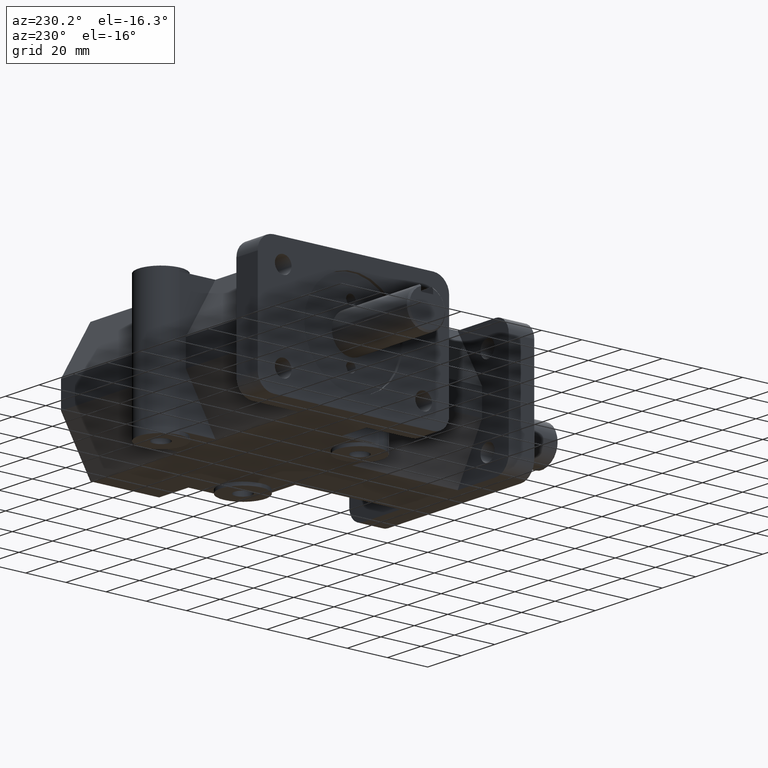
[diagram: clean part render]
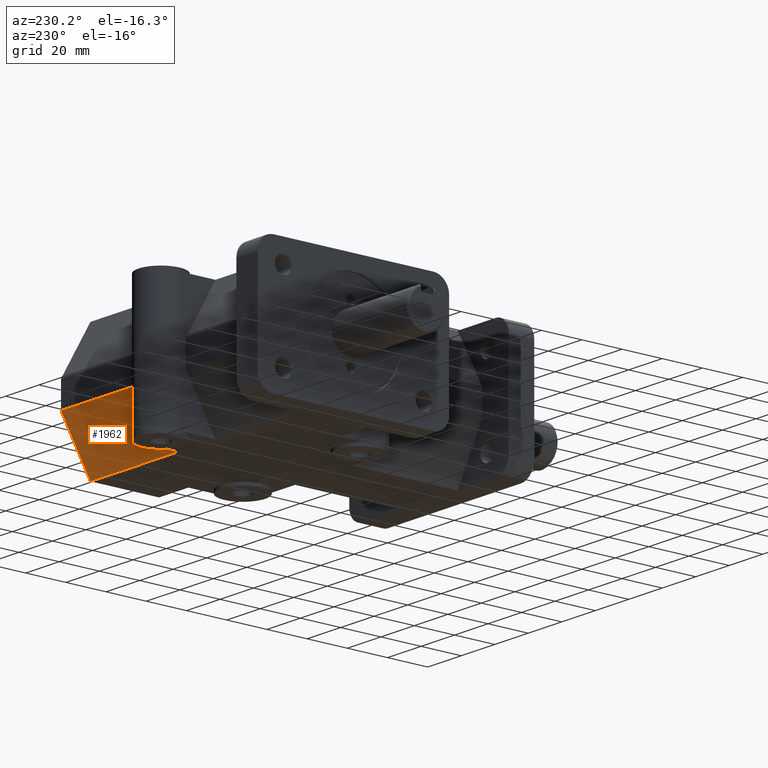
[diagram: same view with one face highlighted and labeled with its STEP entity id]
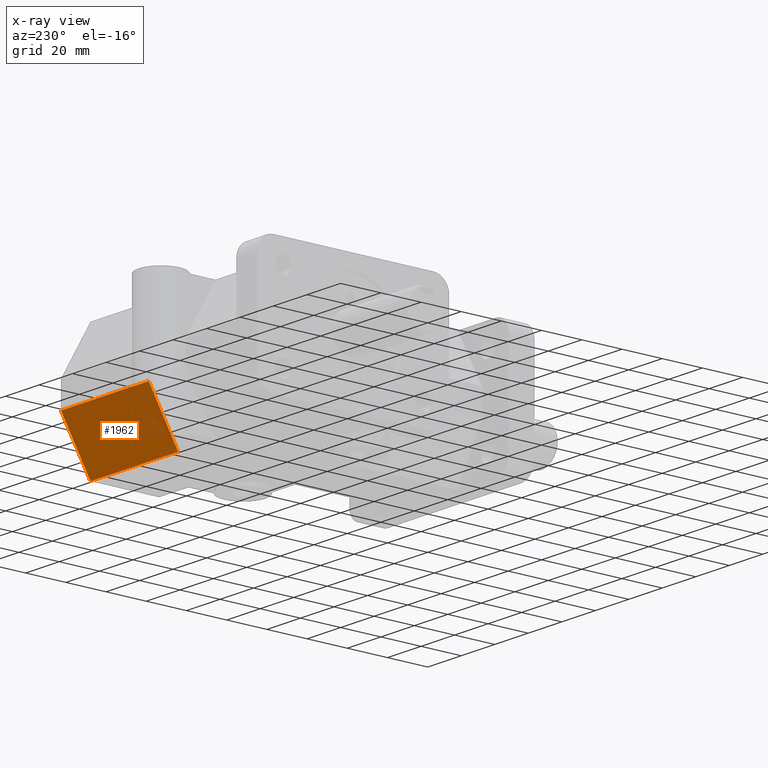
[diagram: x-ray of the same camera — body ghosted, the highlighted face saturated]
A machine part, auxiliary view. The second image highlights one B-rep face of the part: STEP entity #1962.
The next image is the same camera in x-ray: the body ghosted, the highlighted face saturated — about 11% of this face is hidden behind the body in this view.
In plain terms, the highlighted planar face has unit normal (0, 0.866, -0.5).
Its self-contained STEP definition (entity closure, byte-faithful):
#85=PLANE('',#2150);
#180=FACE_OUTER_BOUND('',#308,.T.);
#308=EDGE_LOOP('',(#1608,#1609,#1610,#1611));
#474=LINE('',#3134,#665);
#505=LINE('',#3208,#696);
#507=LINE('',#3211,#698);
#508=LINE('',#3212,#699);
#665=VECTOR('',#2518,1.);
#696=VECTOR('',#2583,1.);
#698=VECTOR('',#2587,1.);
#699=VECTOR('',#2588,1.);
#969=VERTEX_POINT('',#3131);
#970=VERTEX_POINT('',#3133);
#995=VERTEX_POINT('',#3205);
#996=VERTEX_POINT('',#3207);
#1189=EDGE_CURVE('',#970,#969,#474,.T.);
#1225=EDGE_CURVE('',#996,#995,#505,.T.);
#1227=EDGE_CURVE('',#995,#970,#507,.T.);
#1228=EDGE_CURVE('',#969,#996,#508,.F.);
#1608=ORIENTED_EDGE('',*,*,#1227,.T.);
#1609=ORIENTED_EDGE('',*,*,#1189,.T.);
#1610=ORIENTED_EDGE('',*,*,#1228,.T.);
#1611=ORIENTED_EDGE('',*,*,#1225,.T.);
#1962=ADVANCED_FACE('',(#180),#85,.T.);
#2150=AXIS2_PLACEMENT_3D('',#3210,#2585,#2586);
#2518=DIRECTION('',(-1.,0.,0.));
#2583=DIRECTION('',(1.,0.,0.));
#2585=DIRECTION('center_axis',(0.,0.866025504730542,-0.499999825156179));
#2586=DIRECTION('ref_axis',(0.,-0.499999825156179,-0.866025504730542));
#2587=DIRECTION('',(0.,-0.499999825156179,-0.866025504730542));
#2588=DIRECTION('',(0.,-0.499999825156179,-0.866025504730542));
#3131=CARTESIAN_POINT('',(11.1125,128.21031,-31.75));
#3133=CARTESIAN_POINT('',(63.5,128.21031,-31.75));
#3134=CARTESIAN_POINT('',(30.1625,128.21031,-31.75));
#3205=CARTESIAN_POINT('',(63.5,142.875,-6.35000000000004));
#3207=CARTESIAN_POINT('',(11.1125,142.875,-6.35));
#3208=CARTESIAN_POINT('',(30.1625,142.875,-6.35));
#3210=CARTESIAN_POINT('Origin',(30.1625,135.542655,-19.05));
#3211=CARTESIAN_POINT('',(63.5,-28.3510986897112,-302.922440789315));
#3212=CARTESIAN_POINT('',(11.1125,140.583642508004,-10.318749444871));